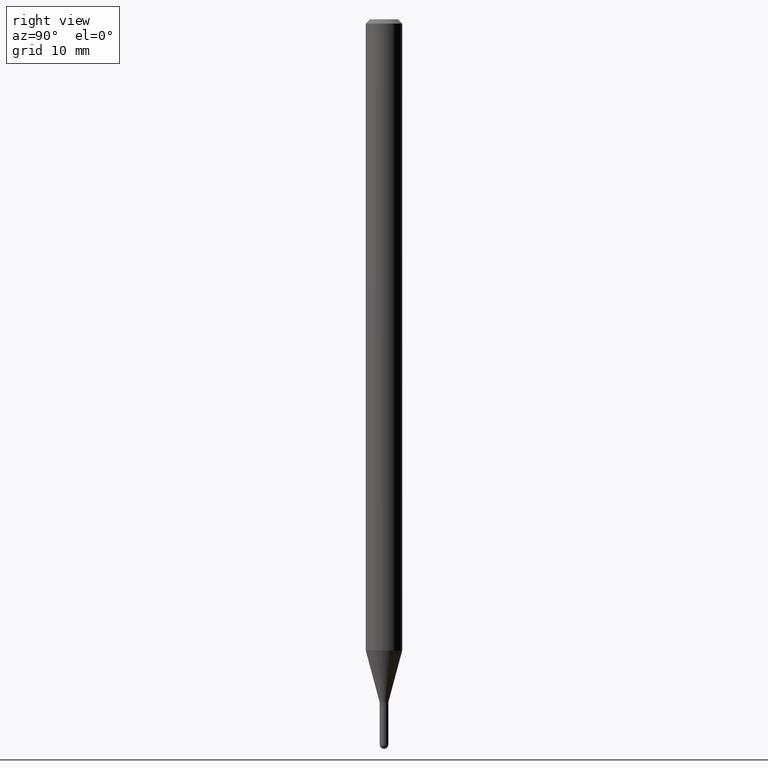
[diagram: clean part render]
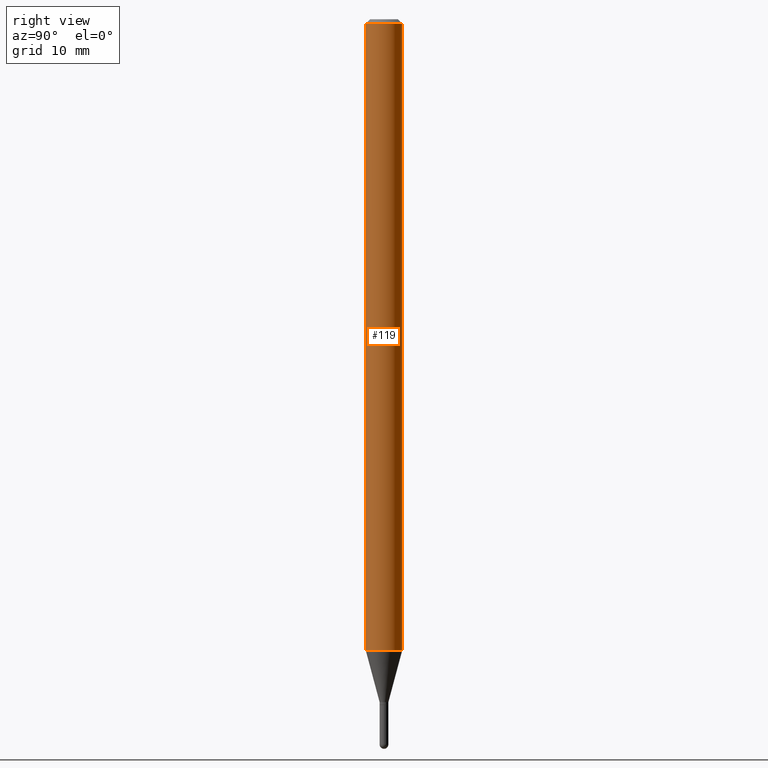
[diagram: same view with one face highlighted and labeled with its STEP entity id]
A machine part, right view. The second image highlights one B-rep face of the part: STEP entity #119.
In plain terms, the highlighted cylindrical surface (edge-blend (fillet) strip) has radius 1.5875 mm, axis along (-0, 0, 1).
Its self-contained STEP definition (entity closure, byte-faithful):
#1 = FACE_OUTER_BOUND ( 'NONE', #77, .T. ) ;
#37 = ORIENTED_EDGE ( 'NONE', *, *, #107, .T. ) ;
#45 = CARTESIAN_POINT ( 'NONE',  ( 3.668090176074577860E-31, -5.237383878245276399E-17, -0.01500000000000032904 ) ) ;
#54 = DIRECTION ( 'NONE',  ( -6.982962677686265922E-15, -1.000000000000000000, 3.483106191921935554E-15 ) ) ;
#59 = DIRECTION ( 'NONE',  ( -6.982962677686265922E-15, -1.000000000000000000, 4.370956789862821150E-15 ) ) ;
#74 = VERTEX_POINT ( 'NONE', #493 ) ;
#77 = EDGE_LOOP ( 'NONE', ( #223, #37, #139, #273 ) ) ;
#81 = VERTEX_POINT ( 'NONE', #341 ) ;
#100 = LINE ( 'NONE', #260, #104 ) ;
#104 = VECTOR ( 'NONE', #263, 39.37007874015748143 ) ;
#107 = EDGE_CURVE ( 'NONE', #339, #74, #100, .T. ) ;
#119 = ADVANCED_FACE ( 'NONE', ( #1 ), #473, .T. ) ;
#128 = CARTESIAN_POINT ( 'NONE',  ( 4.440892098501152726E-16, 0.06249999999999242967, -2.162727586640479593 ) ) ;
#129 = CIRCLE ( 'NONE', #415, 0.06250000000000000000 ) ;
#139 = ORIENTED_EDGE ( 'NONE', *, *, #258, .F. ) ;
#144 = LINE ( 'NONE', #269, #486 ) ;
#147 = CARTESIAN_POINT ( 'NONE',  ( 0.000000000000000000, 0.000000000000000000, 0.000000000000000000 ) ) ;
#153 = EDGE_CURVE ( 'NONE', #405, #81, #144, .T. ) ;
#157 = DIRECTION ( 'NONE',  ( -2.445393450716331535E-29, 3.491589252163441310E-15, 1.000000000000000000 ) ) ;
#223 = ORIENTED_EDGE ( 'NONE', *, *, #462, .T. ) ;
#258 = EDGE_CURVE ( 'NONE', #81, #74, #129, .T. ) ;
#260 = CARTESIAN_POINT ( 'NONE',  ( 4.440892098500625669E-16, 0.06250000000000000000, -2.182243282602150819E-16 ) ) ;
#263 = DIRECTION ( 'NONE',  ( -2.445393450716331535E-29, 3.491589252163441310E-15, 1.000000000000000000 ) ) ;
#269 = CARTESIAN_POINT ( 'NONE',  ( -4.364351673553916201E-16, -0.06250000000000000000, 2.182243282602150819E-16 ) ) ;
#273 = ORIENTED_EDGE ( 'NONE', *, *, #153, .F. ) ;
#317 = DIRECTION ( 'NONE',  ( -6.982962677686265922E-15, -1.000000000000000000, 3.491589252163441310E-15 ) ) ;
#321 = CARTESIAN_POINT ( 'NONE',  ( -4.364351673553388650E-16, -0.06250000000000757727, -2.162727586640479149 ) ) ;
#339 = VERTEX_POINT ( 'NONE', #128 ) ;
#341 = CARTESIAN_POINT ( 'NONE',  ( -4.364351673553912750E-16, -0.06250000000000005551, -0.01500000000000011047 ) ) ;
#369 = AXIS2_PLACEMENT_3D ( 'NONE', #416, #454, #59 ) ;
#378 = CIRCLE ( 'NONE', #369, 0.06250000000000000000 ) ;
#405 = VERTEX_POINT ( 'NONE', #321 ) ;
#415 = AXIS2_PLACEMENT_3D ( 'NONE', #45, #157, #54 ) ;
#416 = CARTESIAN_POINT ( 'NONE',  ( 5.288719876054166459E-29, -7.551356396871277029E-15, -2.162727586640479593 ) ) ;
#425 = DIRECTION ( 'NONE',  ( -2.445393450716331535E-29, 3.491589252163441310E-15, 1.000000000000000000 ) ) ;
#454 = DIRECTION ( 'NONE',  ( -2.445393450716331535E-29, 3.491589252163441310E-15, 1.000000000000000000 ) ) ;
#456 = AXIS2_PLACEMENT_3D ( 'NONE', #147, #505, #317 ) ;
#462 = EDGE_CURVE ( 'NONE', #405, #339, #378, .T. ) ;
#473 = CYLINDRICAL_SURFACE ( 'NONE', #456, 0.06250000000000000000 ) ;
#486 = VECTOR ( 'NONE', #425, 39.37007874015748143 ) ;
#493 = CARTESIAN_POINT ( 'NONE',  ( 4.440892098501159629E-16, 0.06249999999999995837, -0.01500000000000054588 ) ) ;
#505 = DIRECTION ( 'NONE',  ( -2.445393450716331535E-29, 3.491589252163441310E-15, 1.000000000000000000 ) ) ;